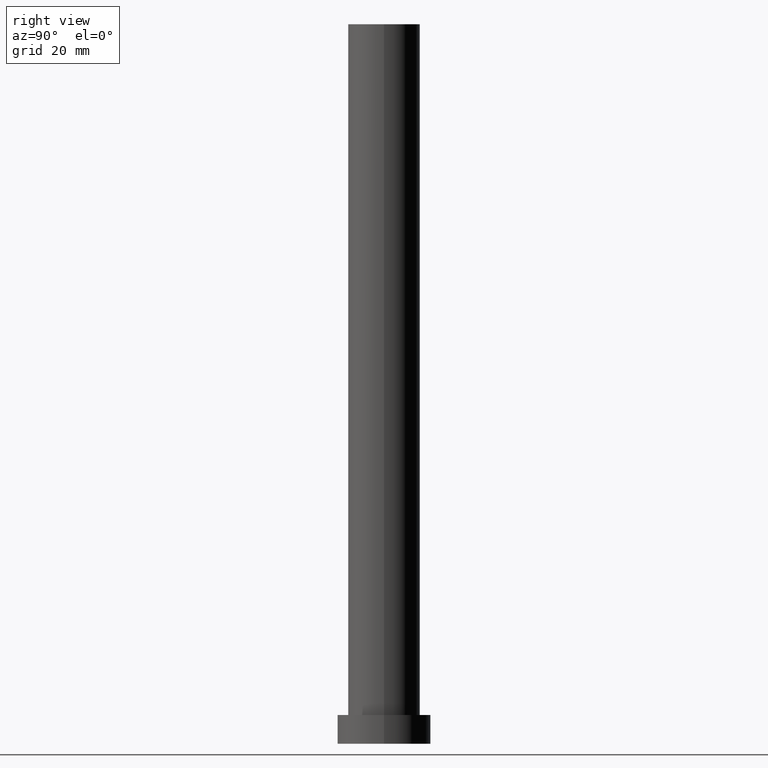
[diagram: clean part render]
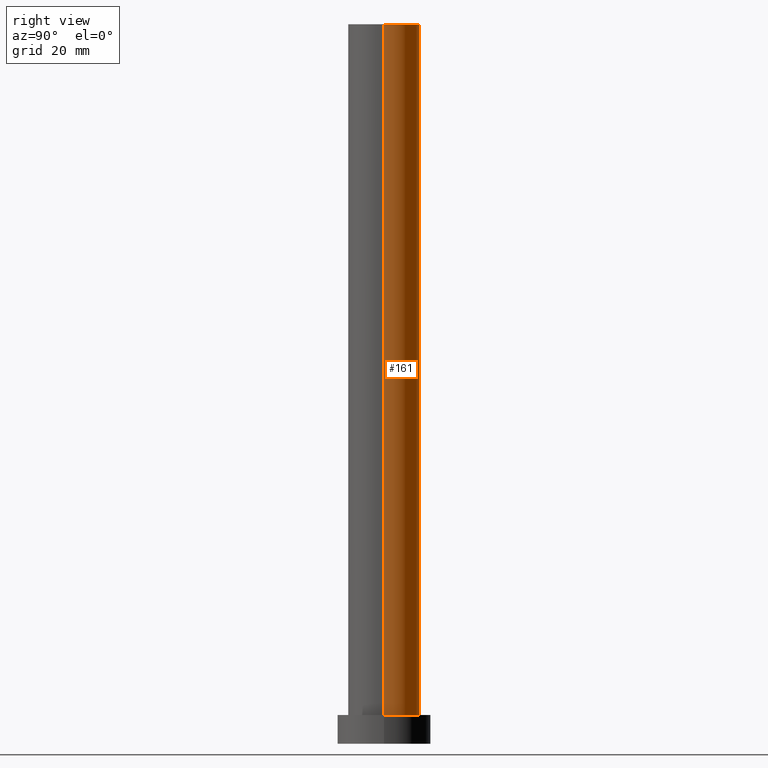
[diagram: same view with one face highlighted and labeled with its STEP entity id]
A machine part, right view. The second image highlights one B-rep face of the part: STEP entity #161.
In plain terms, the highlighted cylindrical surface (edge-blend (fillet) strip) has radius 10 mm, axis along (-0, -0, -1).
Its self-contained STEP definition (entity closure, byte-faithful):
#11 = ORIENTED_EDGE ( 'NONE', *, *, #84, .T. ) ;
#13 = EDGE_LOOP ( 'NONE', ( #72, #11, #66, #145 ) ) ;
#17 = CARTESIAN_POINT ( 'NONE',  ( 10.00000000000000000, 1.224646799147353256E-15, 200.0000000000000000 ) ) ;
#18 = AXIS2_PLACEMENT_3D ( 'NONE', #164, #159, #101 ) ;
#20 = AXIS2_PLACEMENT_3D ( 'NONE', #121, #118, #178 ) ;
#24 = EDGE_CURVE ( 'NONE', #246, #193, #50, .T. ) ;
#31 = VECTOR ( 'NONE', #92, 1000.000000000000000 ) ;
#50 = LINE ( 'NONE', #116, #31 ) ;
#53 = VERTEX_POINT ( 'NONE', #249 ) ;
#55 = CARTESIAN_POINT ( 'NONE',  ( -10.00000000000000000, 0.000000000000000000, 200.0000000000000000 ) ) ;
#66 = ORIENTED_EDGE ( 'NONE', *, *, #88, .T. ) ;
#72 = ORIENTED_EDGE ( 'NONE', *, *, #100, .F. ) ;
#78 = CARTESIAN_POINT ( 'NONE',  ( -10.00000000000000000, 0.000000000000000000, 8.000000000000000000 ) ) ;
#84 = EDGE_CURVE ( 'NONE', #53, #209, #160, .T. ) ;
#88 = EDGE_CURVE ( 'NONE', #209, #193, #151, .T. ) ;
#92 = DIRECTION ( 'NONE',  ( -0.000000000000000000, -0.000000000000000000, -1.000000000000000000 ) ) ;
#100 = EDGE_CURVE ( 'NONE', #53, #246, #113, .T. ) ;
#101 = DIRECTION ( 'NONE',  ( 1.000000000000000000, 0.000000000000000000, 0.000000000000000000 ) ) ;
#113 = CIRCLE ( 'NONE', #20, 10.00000000000000000 ) ;
#116 = CARTESIAN_POINT ( 'NONE',  ( -10.00000000000000000, 0.000000000000000000, 200.0000000000000000 ) ) ;
#118 = DIRECTION ( 'NONE',  ( 0.000000000000000000, 0.000000000000000000, 1.000000000000000000 ) ) ;
#121 = CARTESIAN_POINT ( 'NONE',  ( 0.000000000000000000, 0.000000000000000000, 200.0000000000000000 ) ) ;
#138 = CYLINDRICAL_SURFACE ( 'NONE', #179, 10.00000000000000000 ) ;
#145 = ORIENTED_EDGE ( 'NONE', *, *, #24, .F. ) ;
#151 = CIRCLE ( 'NONE', #18, 10.00000000000000000 ) ;
#159 = DIRECTION ( 'NONE',  ( 0.000000000000000000, 0.000000000000000000, 1.000000000000000000 ) ) ;
#160 = LINE ( 'NONE', #17, #243 ) ;
#161 = ADVANCED_FACE ( 'NONE', ( #166 ), #138, .T. ) ;
#164 = CARTESIAN_POINT ( 'NONE',  ( 0.000000000000000000, 0.000000000000000000, 8.000000000000000000 ) ) ;
#166 = FACE_OUTER_BOUND ( 'NONE', #13, .T. ) ;
#178 = DIRECTION ( 'NONE',  ( 1.000000000000000000, 0.000000000000000000, 0.000000000000000000 ) ) ;
#179 = AXIS2_PLACEMENT_3D ( 'NONE', #182, #180, #236 ) ;
#180 = DIRECTION ( 'NONE',  ( -0.000000000000000000, -0.000000000000000000, -1.000000000000000000 ) ) ;
#182 = CARTESIAN_POINT ( 'NONE',  ( 0.000000000000000000, 0.000000000000000000, 200.0000000000000000 ) ) ;
#193 = VERTEX_POINT ( 'NONE', #78 ) ;
#209 = VERTEX_POINT ( 'NONE', #253 ) ;
#214 = DIRECTION ( 'NONE',  ( -0.000000000000000000, -0.000000000000000000, -1.000000000000000000 ) ) ;
#236 = DIRECTION ( 'NONE',  ( -1.000000000000000000, 0.000000000000000000, 0.000000000000000000 ) ) ;
#243 = VECTOR ( 'NONE', #214, 1000.000000000000000 ) ;
#246 = VERTEX_POINT ( 'NONE', #55 ) ;
#249 = CARTESIAN_POINT ( 'NONE',  ( 10.00000000000000000, 1.224646799147353256E-15, 200.0000000000000000 ) ) ;
#253 = CARTESIAN_POINT ( 'NONE',  ( 10.00000000000000000, 1.224646799147353256E-15, 8.000000000000000000 ) ) ;